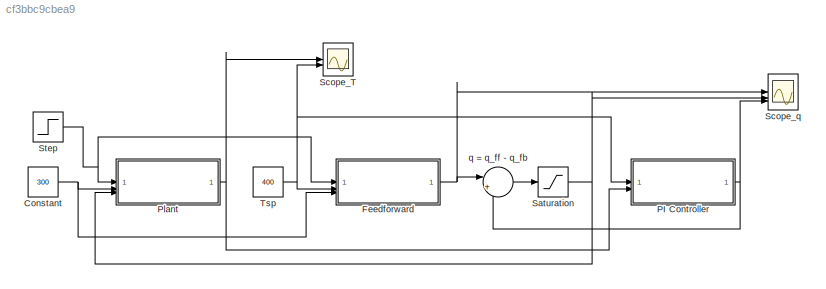
MODEL slx_cf3bbc9cbea9
KIND model
CONFIG AbsTol = auto
CONFIG EnableMultiTasking = off
CONFIG FixedStep = auto
CONFIG MaxStep = auto
CONFIG MinStep = auto
CONFIG RelTol = 1e-3
CONFIG SampleTimeConstraint = Unconstrained
CONFIG SolverName = ode45
CONFIG StartTime = 0.0
CONFIG StopTime = 2000
BLOCK [Constant] Constant
  Value = 300
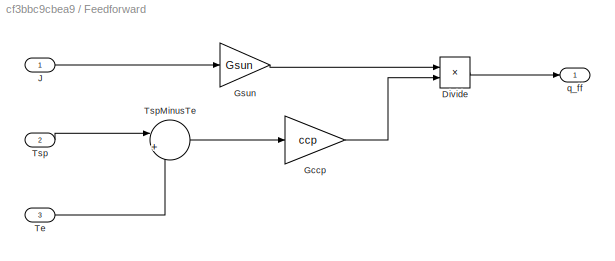
BLOCK [SubSystem] Feedforward
BLOCK [Product] Feedforward/Divide
  Inputs = */
BLOCK [Gain] Feedforward/Gccp
  Gain = ccp
BLOCK [Gain] Feedforward/Gsun
  Gain = Gsun
BLOCK [Inport] Feedforward/J
BLOCK [Inport] Feedforward/Te
  Port = 3
BLOCK [Inport] Feedforward/Tsp
  Port = 2
BLOCK [Sum] Feedforward/TspMinusTe
  Inputs = |+-
BLOCK [Outport] Feedforward/q_ff
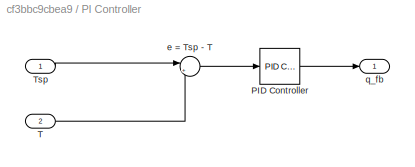
BLOCK [SubSystem] PI Controller
BLOCK [Reference] PI Controller/PID Controller  REF=slpidlib/PID Controller
  LibrarySourceBlock = simulink/Continuous/PID Controller
  SourceBlock = slpidlib/PID Controller
  SourceType = PID 1dof
BLOCK [Inport] PI Controller/T
  Port = 2
BLOCK [Inport] PI Controller/Tsp
BLOCK [Sum] PI Controller/e = Tsp - T
  Inputs = |+-
BLOCK [Outport] PI Controller/q_fb
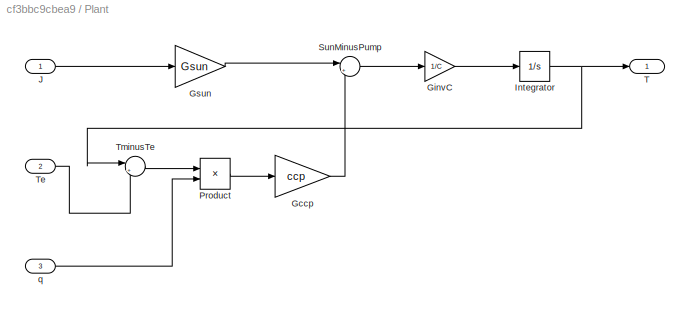
BLOCK [SubSystem] Plant
BLOCK [Gain] Plant/Gccp
  Gain = ccp
BLOCK [Gain] Plant/GinvC
  Gain = 1/C
BLOCK [Gain] Plant/Gsun
  Gain = Gsun
BLOCK [Integrator] Plant/Integrator
  InitialCondition = 400
BLOCK [Inport] Plant/J
BLOCK [Product] Plant/Product
BLOCK [Sum] Plant/SunMinusPump
  Inputs = |+-
BLOCK [Outport] Plant/T
BLOCK [Inport] Plant/Te
  Port = 2
BLOCK [Sum] Plant/TminusTe
  Inputs = |+-
BLOCK [Inport] Plant/q
  Port = 3
BLOCK [Saturate] Saturation
  LowerLimit = 0
  UpperLimit = 10
BLOCK [Scope] Scope_T
  ActiveDisplayYMaximum = 401.68501743527361
  ActiveDisplayYMinimum = 399.00374807364017
  ContainerLayout = {"WindowBounds":[0,32,1366,682],"gridDimensions":{"w":1,"h":1},"tileCount":1,"tileCoverage":1,"columnWeights":1,"rowWeights":1,"tileOccupancy":{"children":[{"id":"/Scope_T"},{"id":"/Scope_q"}]}}
  Floating = off
  GraphicalSettings = {"Style":{"BackgroundColor":[0.12941176470588237,0.12941176470588237,0.12941176470588237],"AxesColor":[0.07058823529411765,0.07058823529411765,0.07058823529411765],"LabelsColor":[0.8509803921568627,0.8509803921568627,0.8509803921568627],"PreserveColors":false,"Visible":[true,true],"LineStyle":["-",":"],"LineWidth":[1.5,3],"BarWidth":[0.9,0.9],"LineColor":["auto","auto"],"LineFaceAlpha":[1,1],"Line...<+2070ch>
  MultipleDisplayCache = [{"MaxYLimMag":500,"MaxYLimReal":401.68501743527361,"MinYLimMag":300,"MinYLimReal":399.00374807364017,"PlotAsMagnitudePhase":false,"ShowGrid":true,"ShowLegend":false,"Title":"%<SignalLabel>","YLabel":""}]
  NumInputPorts = 2
  ScopeFrameLocation = container
  Visible = on
  WasSavedAsWebScope = on
  WindowPosition = [1.000000,55.000000,1366.000000,645.000000,]
BLOCK [Scope] Scope_q
  ActiveDisplayYMaximum = 6.9643873110791414
  ActiveDisplayYMinimum = 2.4381528265739218
  ContainerLayout = {"WindowBounds":[0,32,1366,682],"gridDimensions":{"w":1,"h":1},"tileCount":1,"tileCoverage":1,"columnWeights":1,"rowWeights":1,"tileOccupancy":{"children":[{"id":"/Scope_T"},{"id":"/Scope_q"}]}}
  DataLoggingVariableName = ScopeData1
  Floating = off
  GraphicalSettings = {"AxesScalingProperties":{"AlignXAxis":"Center","AlignYAxis":"Center","AutoScaleXAxisLimits":false,"AxesScaling":"Manual","AxesScalingNumUpdates":10,"ExpandOnly":true,"ScaleAxesLimitsAtStop":false,"XAxisDataRange":100,"YAxisDataRange":80},"DisplayProperties":{"ColorOrder":["auto","auto","auto","auto","auto","auto","auto","auto","auto","auto","auto","auto","auto","auto","auto","auto","auto","auto",...<+2260ch>
  MultipleDisplayCache = [{"MaxYLimMag":6.1837577962577965,"MaxYLimReal":6.9643873110791414,"MinYLimMag":0,"MinYLimReal":2.4381528265739218,"PlotAsMagnitudePhase":false,"ShowGrid":true,"ShowLegend":false,"Title":"%<SignalLabel>","YLabel":""}]
  NumInputPorts = 3
  ScopeFrameLocation = container
  Visible = on
  WasSavedAsWebScope = on
  WindowPosition = [1.000000,55.000000,1366.000000,645.000000,]
BLOCK [Step] Step
  After = 0.6
  Before = 0.8
  SampleTime = 0
  Time = 500
BLOCK [Constant] Tsp
  Value = 400
BLOCK [Sum] q = q_ff - q_fb
  Inputs = |+-
NET Constant:1 -> Feedforward:3, Plant:2
LINE Feedforward/Divide:1 -> Feedforward/q_ff:1
LINE Feedforward/Gccp:1 -> Feedforward/Divide:2
LINE Feedforward/Gsun:1 -> Feedforward/Divide:1
LINE Feedforward/J:1 -> Feedforward/Gsun:1
LINE Feedforward/Te:1 -> Feedforward/TspMinusTe:2
LINE Feedforward/Tsp:1 -> Feedforward/TspMinusTe:1
LINE Feedforward/TspMinusTe:1 -> Feedforward/Gccp:1
NET Feedforward:1 -> Scope_q:1, q = q_ff - q_fb:1
LINE PI Controller/PID Controller:1 -> PI Controller/q_fb:1
LINE PI Controller/T:1 -> PI Controller/e = Tsp - T:2
LINE PI Controller/Tsp:1 -> PI Controller/e = Tsp - T:1
LINE PI Controller/e = Tsp - T:1 -> PI Controller/PID Controller:1
NET PI Controller:1 -> Scope_q:3, q = q_ff - q_fb:2
LINE Plant/Gccp:1 -> Plant/SunMinusPump:2
LINE Plant/GinvC:1 -> Plant/Integrator:1
LINE Plant/Gsun:1 -> Plant/SunMinusPump:1
NET Plant/Integrator:1 -> Plant/T:1, Plant/TminusTe:1
LINE Plant/J:1 -> Plant/Gsun:1
LINE Plant/Product:1 -> Plant/Gccp:1
LINE Plant/SunMinusPump:1 -> Plant/GinvC:1
LINE Plant/Te:1 -> Plant/TminusTe:2
LINE Plant/TminusTe:1 -> Plant/Product:1
LINE Plant/q:1 -> Plant/Product:2
NET Plant:1 -> PI Controller:2, Scope_T:1
NET Saturation:1 -> Plant:3, Scope_q:2
NET Step:1 -> Feedforward:1, Plant:1
NET Tsp:1 -> Feedforward:2, PI Controller:1, Scope_T:2
LINE q = q_ff - q_fb:1 -> Saturation:1
note: NET lines group one-source signal fan-out (src -> all destinations, sorted); 1:1 wires keep LINE
